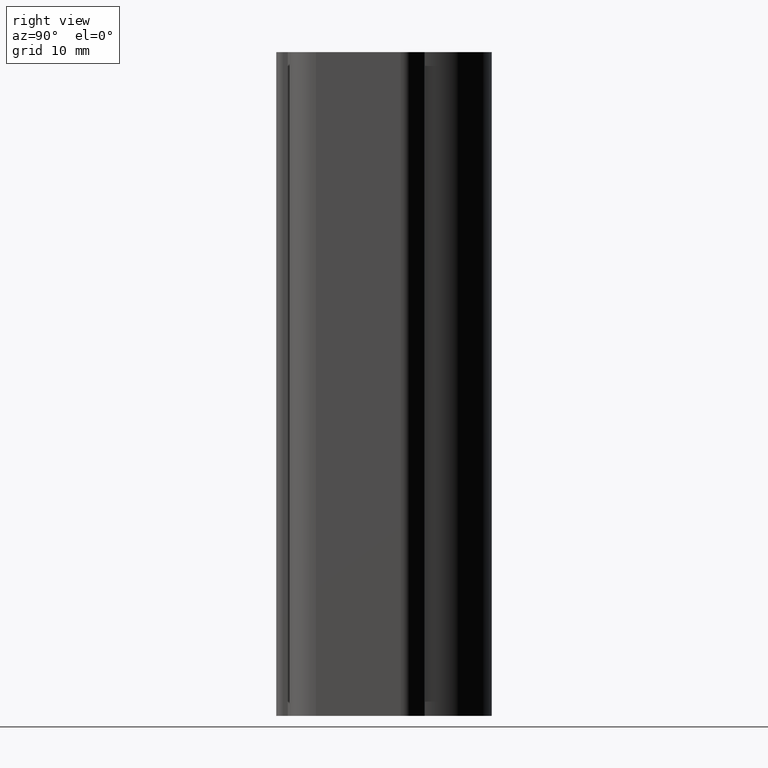
[diagram: clean part render]
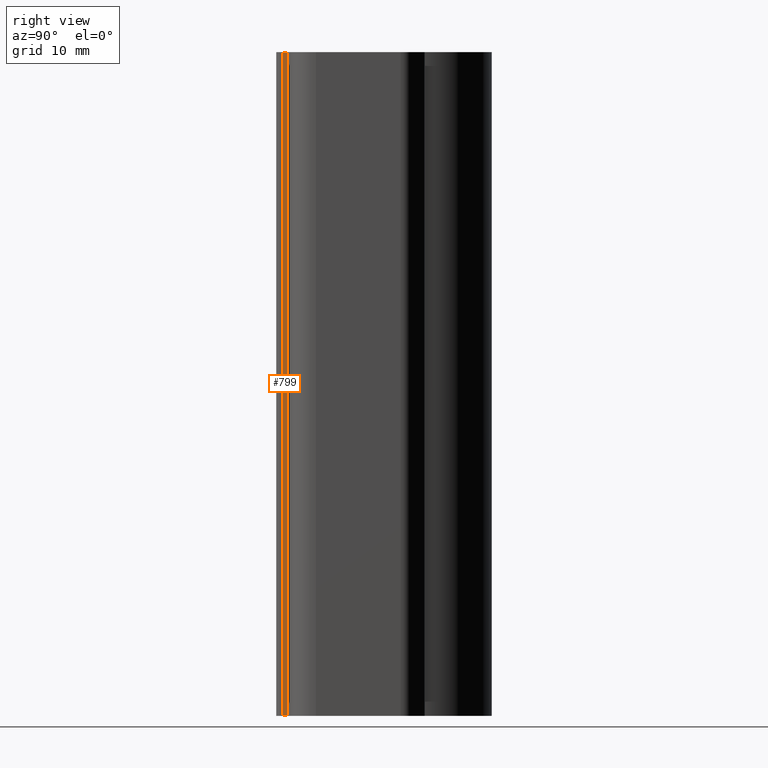
[diagram: same view with one face highlighted and labeled with its STEP entity id]
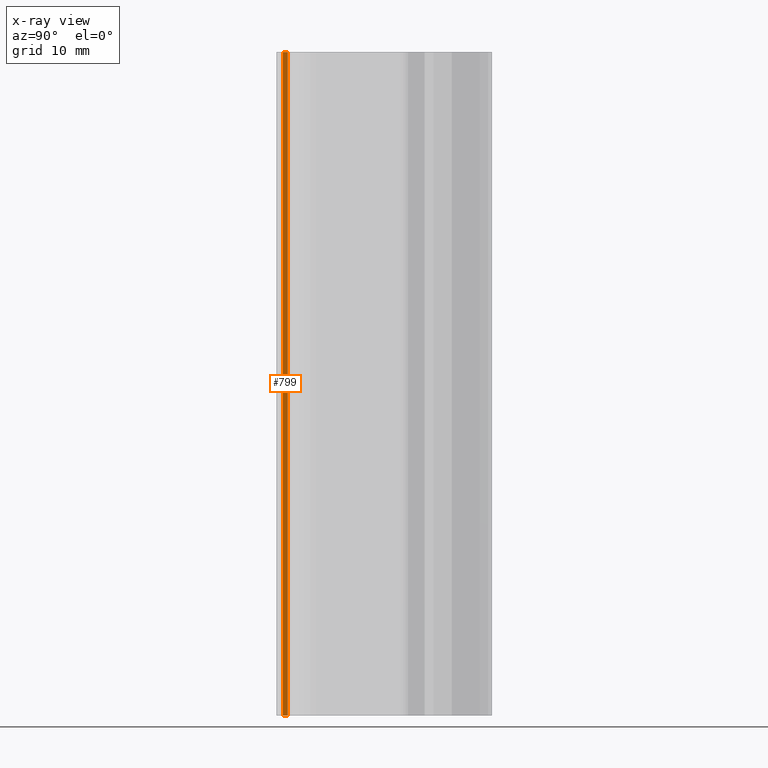
[diagram: x-ray of the same camera — body ghosted, the highlighted face saturated]
A machine part, right view. The second image highlights one B-rep face of the part: STEP entity #799.
The next image is the same camera in x-ray: the body ghosted, the highlighted face saturated — about 0% of this face is hidden behind the body in this view.
In plain terms, the highlighted planar face has unit normal (1, 0, 0).
Its self-contained STEP definition (entity closure, byte-faithful):
#76=FACE_OUTER_BOUND('',#119,.T.);
#119=EDGE_LOOP('',(#657,#658,#659,#660));
#192=LINE('',#1290,#263);
#232=LINE('',#1413,#303);
#233=LINE('',#1416,#304);
#234=LINE('',#1417,#305);
#263=VECTOR('',#1022,10.);
#303=VECTOR('',#1156,10.);
#304=VECTOR('',#1159,10.);
#305=VECTOR('',#1160,10.);
#350=VERTEX_POINT('',#1287);
#351=VERTEX_POINT('',#1289);
#387=VERTEX_POINT('',#1411);
#388=VERTEX_POINT('',#1415);
#428=EDGE_CURVE('',#350,#351,#192,.T.);
#490=EDGE_CURVE('',#350,#387,#232,.T.);
#491=EDGE_CURVE('',#388,#387,#233,.T.);
#492=EDGE_CURVE('',#351,#388,#234,.T.);
#657=ORIENTED_EDGE('',*,*,#490,.T.);
#658=ORIENTED_EDGE('',*,*,#491,.F.);
#659=ORIENTED_EDGE('',*,*,#492,.F.);
#660=ORIENTED_EDGE('',*,*,#428,.F.);
#763=PLANE('',#946);
#799=ADVANCED_FACE('',(#76),#763,.T.);
#946=AXIS2_PLACEMENT_3D('',#1414,#1157,#1158);
#1022=DIRECTION('',(0.,-1.,0.));
#1156=DIRECTION('',(0.,0.,1.));
#1157=DIRECTION('center_axis',(1.,0.,0.));
#1158=DIRECTION('ref_axis',(0.,1.,0.));
#1159=DIRECTION('',(0.,1.,0.));
#1160=DIRECTION('',(0.,0.,1.));
#1287=CARTESIAN_POINT('',(4.0000000000001,-18.3000000000001,-50.));
#1289=CARTESIAN_POINT('',(4.0000000000001,-19.,-50.));
#1290=CARTESIAN_POINT('',(4.0000000000001,-19.,-50.));
#1411=CARTESIAN_POINT('',(4.0000000000001,-18.3000000000001,50.));
#1413=CARTESIAN_POINT('',(4.0000000000001,-18.3000000000001,0.));
#1414=CARTESIAN_POINT('Origin',(4.0000000000001,-19.,0.));
#1415=CARTESIAN_POINT('',(4.0000000000001,-19.,50.));
#1416=CARTESIAN_POINT('',(4.0000000000001,-19.,50.));
#1417=CARTESIAN_POINT('',(4.0000000000001,-19.,0.));